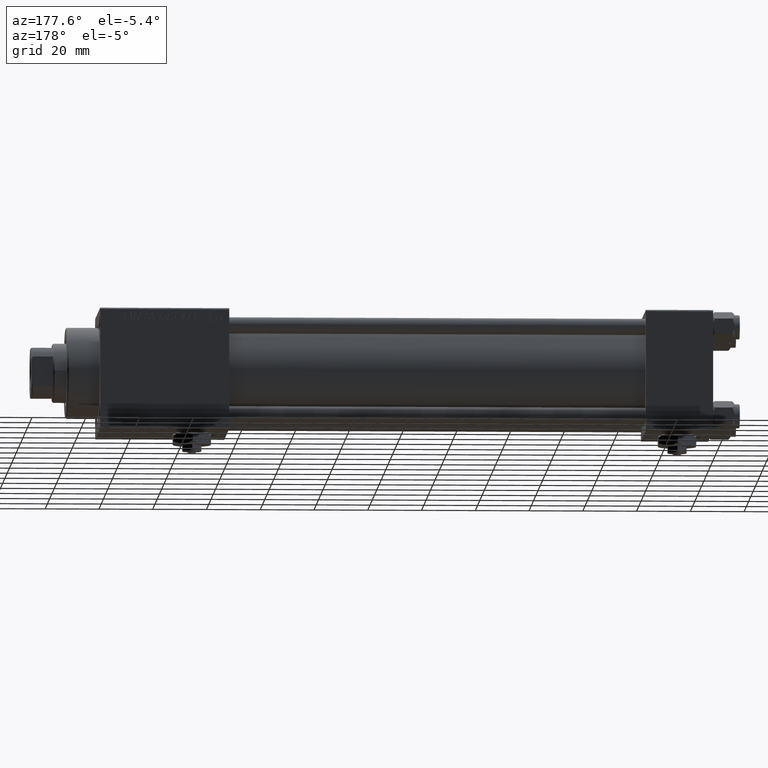
[diagram: clean part render]
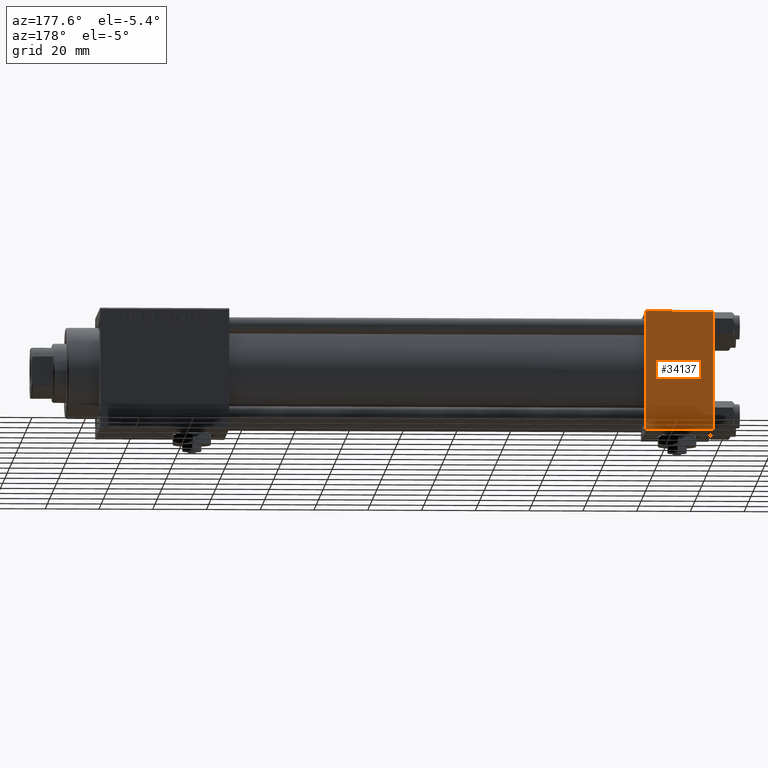
[diagram: same view with one face highlighted and labeled with its STEP entity id]
A machine part, auxiliary view. The second image highlights one B-rep face of the part: STEP entity #34137.
In plain terms, the highlighted planar face has unit normal (0, 1, 0).
Its self-contained STEP definition (entity closure, byte-faithful):
#719 = CARTESIAN_POINT ( 'NONE',  ( 25.00000000000000000, 22.50000000000000000, 21.99999999999999645 ) ) ;
#765 = CARTESIAN_POINT ( 'NONE',  ( 25.00000000000000000, 22.50000000000000000, -21.99999999999996803 ) ) ;
#1484 = LINE ( 'NONE', #50028, #12731 ) ;
#2092 = VECTOR ( 'NONE', #14686, 1000.000000000000000 ) ;
#2646 = EDGE_CURVE ( 'NONE', #48398, #19321, #1484, .T. ) ;
#5715 = DIRECTION ( 'NONE',  ( -1.000000000000000000, 0.000000000000000000, 0.000000000000000000 ) ) ;
#6700 = FACE_OUTER_BOUND ( 'NONE', #11042, .T. ) ;
#8945 = CARTESIAN_POINT ( 'NONE',  ( 0.000000000000000000, 22.50000000000000000, -21.99999999999996803 ) ) ;
#9568 = DIRECTION ( 'NONE',  ( 0.000000000000000000, 0.000000000000000000, -1.000000000000000000 ) ) ;
#10968 = CARTESIAN_POINT ( 'NONE',  ( 0.000000000000000000, 22.50000000000000000, 22.50000000000000355 ) ) ;
#11042 = EDGE_LOOP ( 'NONE', ( #38865, #18768, #32453, #15651 ) ) ;
#12731 = VECTOR ( 'NONE', #5715, 1000.000000000000000 ) ;
#14319 = CARTESIAN_POINT ( 'NONE',  ( 25.00000000000000000, 22.50000000000000000, 22.50000000000000355 ) ) ;
#14686 = DIRECTION ( 'NONE',  ( 0.000000000000000000, 0.000000000000000000, -1.000000000000000000 ) ) ;
#15608 = EDGE_CURVE ( 'NONE', #35811, #19321, #46589, .T. ) ;
#15651 = ORIENTED_EDGE ( 'NONE', *, *, #37214, .T. ) ;
#18768 = ORIENTED_EDGE ( 'NONE', *, *, #2646, .T. ) ;
#19321 = VERTEX_POINT ( 'NONE', #8945 ) ;
#20668 = CARTESIAN_POINT ( 'NONE',  ( 25.00000000000000000, 22.50000000000000000, 21.99999999999999645 ) ) ;
#27299 = DIRECTION ( 'NONE',  ( 0.000000000000000000, -0.000000000000000000, 1.000000000000000000 ) ) ;
#28312 = LINE ( 'NONE', #20668, #34220 ) ;
#30009 = AXIS2_PLACEMENT_3D ( 'NONE', #51018, #51529, #27299 ) ;
#32453 = ORIENTED_EDGE ( 'NONE', *, *, #15608, .F. ) ;
#34137 = ADVANCED_FACE ( 'NONE', ( #6700 ), #47059, .T. ) ;
#34220 = VECTOR ( 'NONE', #44381, 1000.000000000000000 ) ;
#34486 = VERTEX_POINT ( 'NONE', #719 ) ;
#35271 = VECTOR ( 'NONE', #9568, 1000.000000000000000 ) ;
#35811 = VERTEX_POINT ( 'NONE', #46906 ) ;
#37214 = EDGE_CURVE ( 'NONE', #35811, #34486, #28312, .T. ) ;
#38865 = ORIENTED_EDGE ( 'NONE', *, *, #42982, .T. ) ;
#42982 = EDGE_CURVE ( 'NONE', #34486, #48398, #46749, .T. ) ;
#44381 = DIRECTION ( 'NONE',  ( 1.000000000000000000, 0.000000000000000000, 0.000000000000000000 ) ) ;
#46589 = LINE ( 'NONE', #10968, #2092 ) ;
#46749 = LINE ( 'NONE', #14319, #35271 ) ;
#46906 = CARTESIAN_POINT ( 'NONE',  ( 0.000000000000000000, 22.50000000000000000, 21.99999999999999645 ) ) ;
#47059 = PLANE ( 'NONE',  #30009 ) ;
#48398 = VERTEX_POINT ( 'NONE', #765 ) ;
#50028 = CARTESIAN_POINT ( 'NONE',  ( 25.00000000000000000, 22.50000000000000000, -21.99999999999998224 ) ) ;
#51018 = CARTESIAN_POINT ( 'NONE',  ( 25.00000000000000000, 22.50000000000000000, 22.50000000000000355 ) ) ;
#51529 = DIRECTION ( 'NONE',  ( -0.000000000000000000, 1.000000000000000000, 0.000000000000000000 ) ) ;